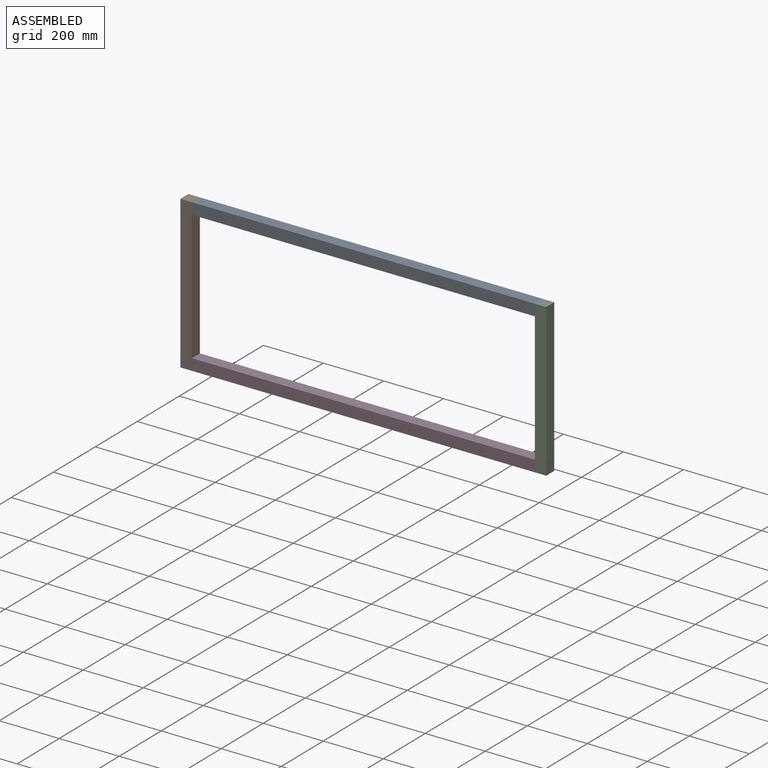
[diagram: assembled view]
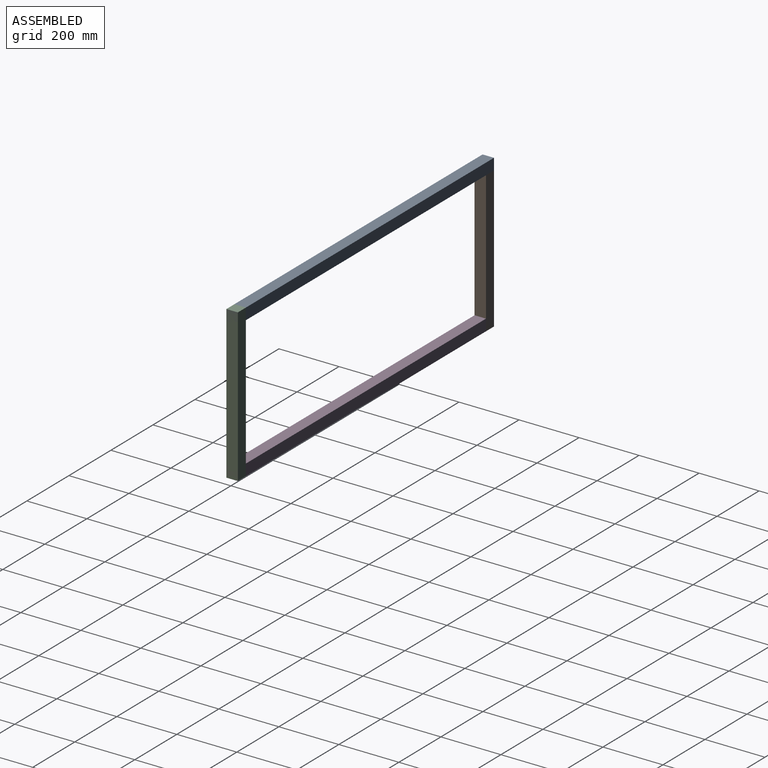
[diagram: assembled view, second angle]
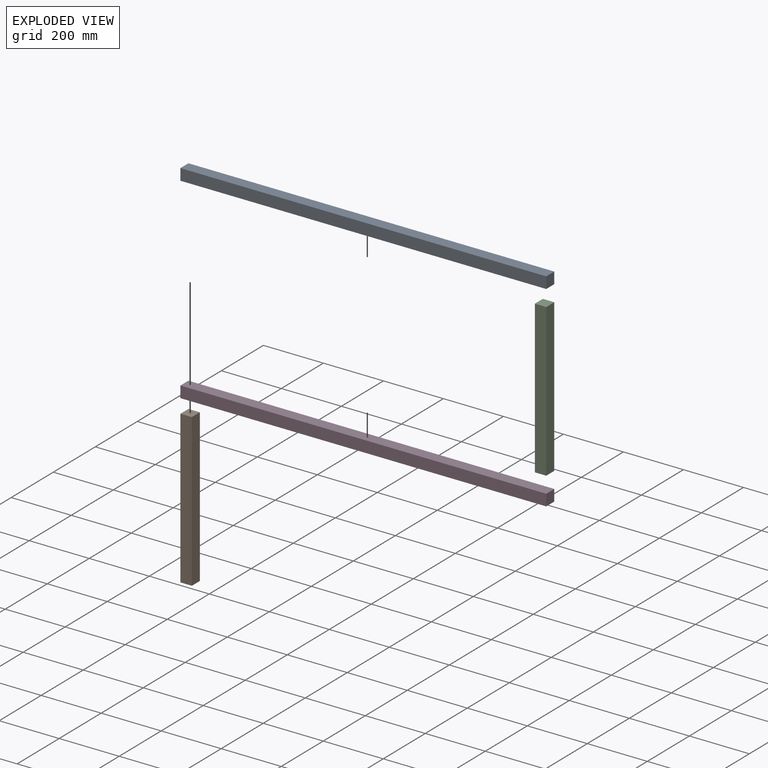
[diagram: exploded view]
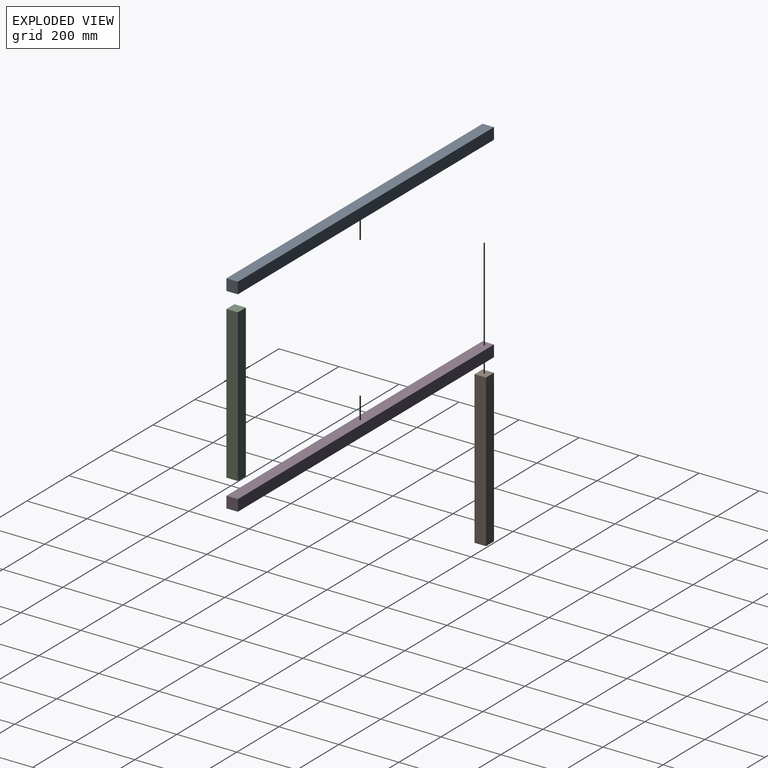
[diagram: exploded view, second angle]
ASSEMBLY  parts=4 mates=3
PART A: 6 faces, bbox 1219.2x38.1x38.1 mm
  f0: plane 38.1x38.1mm, normal (-1,0,0), area 1451.6mm2, adj f1,f3,f4,f5
  f1: plane 1219.2x38.1mm, normal (0,0,-1), area 46451.5mm2, adj f0,f2,f4,f5
  f2: plane 38.1x38.1mm, normal (1,0,0), area 1451.6mm2, adj f1,f3,f4,f5
  f3: plane 1219.2x38.1mm, normal (0,0,1), area 46451.5mm2, adj f0,f2,f4,f5
  f4: plane 1219.2x38.1mm, normal (0,-1,0), area 46451.5mm2, adj f0,f1,f2,f3
  f5: plane 1219.2x38.1mm, normal (0,1,0), area 46451.5mm2, adj f0,f1,f2,f3
PART B: 6 faces, bbox 38.1x38.1x508 mm
  f0: plane 38.1x38.1mm, normal (0,0,-1), area 1451.6mm2, adj f1,f3,f4,f5
  f1: plane 508x38.1mm, normal (1,0,0), area 19354.8mm2, adj f0,f2,f4,f5
  f2: plane 38.1x38.1mm, normal (0,0,1), area 1451.6mm2, adj f1,f3,f4,f5
  f3: plane 508x38.1mm, normal (-1,0,0), area 19354.8mm2, adj f0,f2,f4,f5
  f4: plane 508x38.1mm, normal (0,-1,0), area 19354.8mm2, adj f0,f1,f2,f3
  f5: plane 508x38.1mm, normal (0,1,0), area 19354.8mm2, adj f0,f1,f2,f3
PART C: same geometry as B
PART D: same geometry as A
PLACE A t=(-223.21,19.05,438.12)mm
PLACE B t=(-375.57,19.05,100.19)mm
PLACE C t=(805.53,19.05,100.19)mm
PLACE D t=(-223.21,19.05,-31.78)mm
MATE planar B.f0 <-> D.f1  axis (0,0,-1) through (-482.68,-19.05,-69.88)mm
MATE planar C.f0 <-> D.f1  axis (0,0,1) through (736.52,-19.05,-69.88)mm
MATE planar A.f3 <-> C.f2  axis (0,0,1) through (736.52,19.05,438.12)mm
